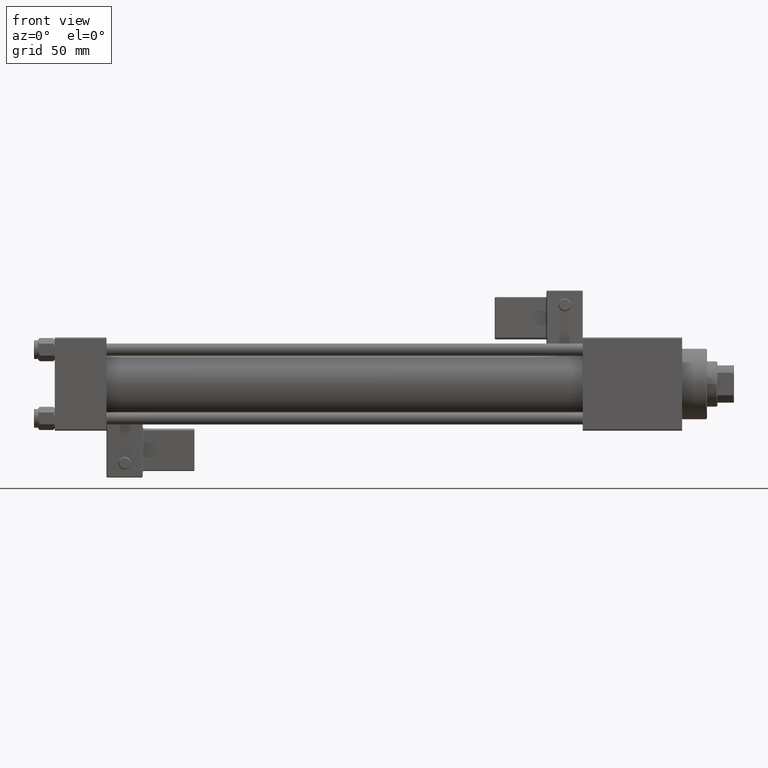
[diagram: clean part render]
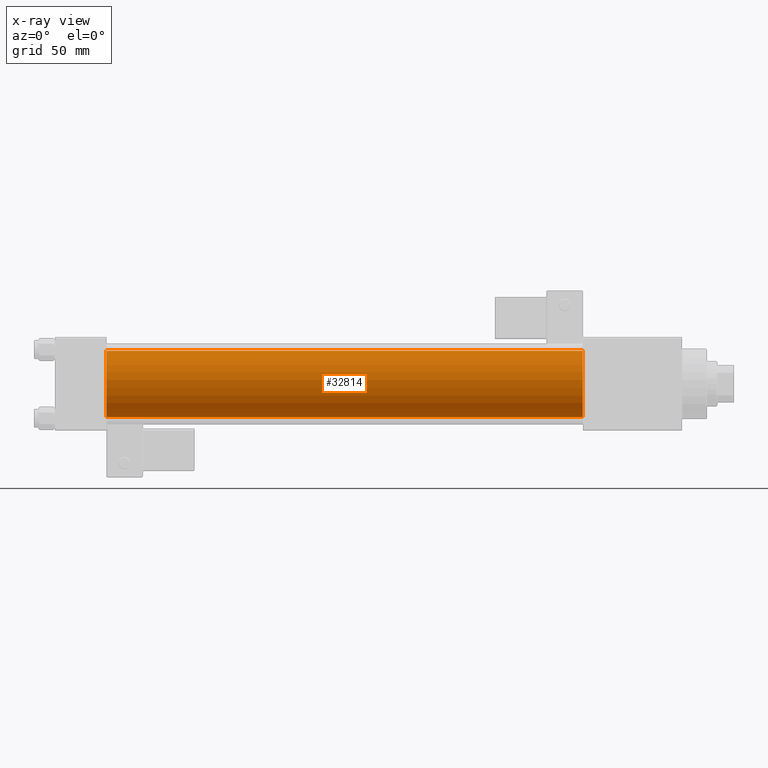
[diagram: x-ray — body ghosted, one internal face saturated and labeled with its STEP entity id]
A machine part, front view, then the same camera in x-ray: the body is ghosted and one INTERNAL B-rep face — a face not visible from any outside direction — is saturated and labeled: STEP entity #32814.
In plain terms, the highlighted cylindrical surface (edge-blend (fillet) strip) has radius 16 mm, axis along (-1, -0, -0).
Its self-contained STEP definition (entity closure, byte-faithful):
#4646 = DIRECTION ( 'NONE',  ( 0.000000000000000000, 0.000000000000000000, 1.000000000000000000 ) ) ;
#5706 = VERTEX_POINT ( 'NONE', #44133 ) ;
#8507 = DIRECTION ( 'NONE',  ( 1.000000000000000000, 0.000000000000000000, 0.000000000000000000 ) ) ;
#8718 = CYLINDRICAL_SURFACE ( 'NONE', #13404, 16.00000000000000000 ) ;
#10686 = LINE ( 'NONE', #31353, #39354 ) ;
#11419 = DIRECTION ( 'NONE',  ( 1.000000000000000000, 0.000000000000000000, 0.000000000000000000 ) ) ;
#13291 = AXIS2_PLACEMENT_3D ( 'NONE', #41362, #11419, #37281 ) ;
#13404 = AXIS2_PLACEMENT_3D ( 'NONE', #25309, #41917, #4646 ) ;
#15033 = DIRECTION ( 'NONE',  ( -1.000000000000000000, -0.000000000000000000, -0.000000000000000000 ) ) ;
#16686 = ORIENTED_EDGE ( 'NONE', *, *, #29703, .T. ) ;
#19818 = ORIENTED_EDGE ( 'NONE', *, *, #31891, .F. ) ;
#20991 = CARTESIAN_POINT ( 'NONE',  ( 25.00000000000000000, -6.426503353294456087E-16, -16.00000000000000000 ) ) ;
#25090 = DIRECTION ( 'NONE',  ( 0.000000000000000000, 0.000000000000000000, -1.000000000000000000 ) ) ;
#25309 = CARTESIAN_POINT ( 'NONE',  ( 255.0000000000000000, -2.602085213965210642E-15, 0.000000000000000000 ) ) ;
#27488 = DIRECTION ( 'NONE',  ( -1.000000000000000000, -0.000000000000000000, -0.000000000000000000 ) ) ;
#28839 = EDGE_CURVE ( 'NONE', #5706, #28842, #41087, .T. ) ;
#28842 = VERTEX_POINT ( 'NONE', #20991 ) ;
#29159 = CARTESIAN_POINT ( 'NONE',  ( 25.00000000000000000, -2.602085213965210642E-15, 0.000000000000000000 ) ) ;
#29703 = EDGE_CURVE ( 'NONE', #32909, #35271, #52387, .T. ) ;
#30076 = EDGE_CURVE ( 'NONE', #35271, #28842, #10686, .T. ) ;
#31353 = CARTESIAN_POINT ( 'NONE',  ( 255.0000000000000000, -6.426503353294456087E-16, -16.00000000000000000 ) ) ;
#31891 = EDGE_CURVE ( 'NONE', #32909, #5706, #36489, .T. ) ;
#32814 = ADVANCED_FACE ( 'NONE', ( #45986 ), #8718, .F. ) ;
#32909 = VERTEX_POINT ( 'NONE', #38908 ) ;
#35271 = VERTEX_POINT ( 'NONE', #36346 ) ;
#36346 = CARTESIAN_POINT ( 'NONE',  ( 255.0000000000000000, -6.426503353294456087E-16, -16.00000000000000000 ) ) ;
#36489 = LINE ( 'NONE', #49260, #40335 ) ;
#36933 = ORIENTED_EDGE ( 'NONE', *, *, #28839, .F. ) ;
#37281 = DIRECTION ( 'NONE',  ( 0.000000000000000000, 0.000000000000000000, -1.000000000000000000 ) ) ;
#38908 = CARTESIAN_POINT ( 'NONE',  ( 255.0000000000000000, -2.602085213965210642E-15, 16.00000000000000000 ) ) ;
#39354 = VECTOR ( 'NONE', #15033, 1000.000000000000000 ) ;
#40335 = VECTOR ( 'NONE', #27488, 1000.000000000000000 ) ;
#41087 = CIRCLE ( 'NONE', #46269, 16.00000000000000000 ) ;
#41362 = CARTESIAN_POINT ( 'NONE',  ( 255.0000000000000000, -2.602085213965210642E-15, 0.000000000000000000 ) ) ;
#41917 = DIRECTION ( 'NONE',  ( -1.000000000000000000, -0.000000000000000000, -0.000000000000000000 ) ) ;
#44133 = CARTESIAN_POINT ( 'NONE',  ( 25.00000000000000000, -2.602085213965210642E-15, 16.00000000000000000 ) ) ;
#45986 = FACE_OUTER_BOUND ( 'NONE', #53309, .T. ) ;
#46269 = AXIS2_PLACEMENT_3D ( 'NONE', #29159, #8507, #25090 ) ;
#49260 = CARTESIAN_POINT ( 'NONE',  ( 255.0000000000000000, -2.602085213965210642E-15, 16.00000000000000000 ) ) ;
#50330 = ORIENTED_EDGE ( 'NONE', *, *, #30076, .T. ) ;
#52387 = CIRCLE ( 'NONE', #13291, 16.00000000000000000 ) ;
#53309 = EDGE_LOOP ( 'NONE', ( #16686, #50330, #36933, #19818 ) ) ;